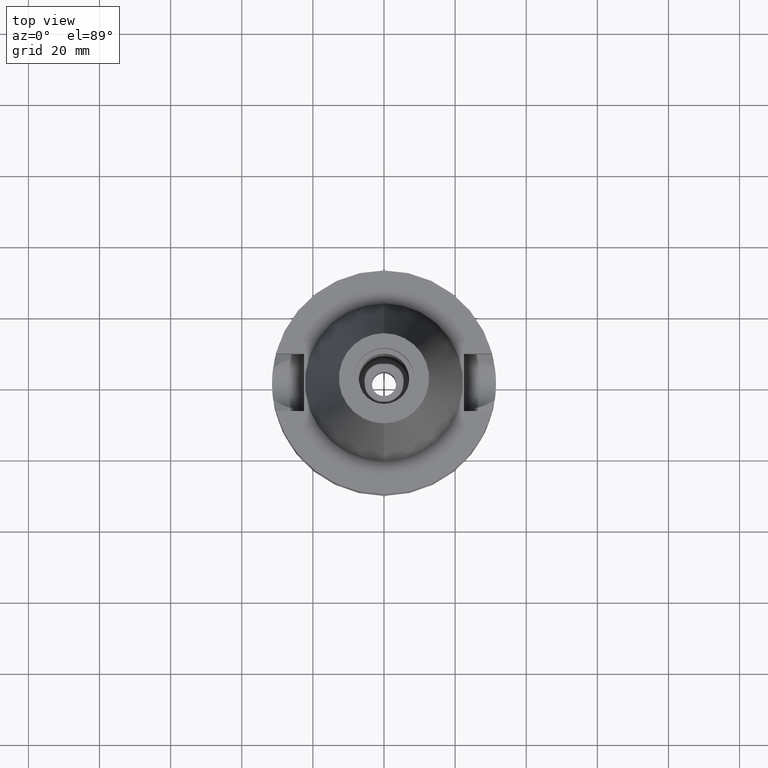
[diagram: clean part render]
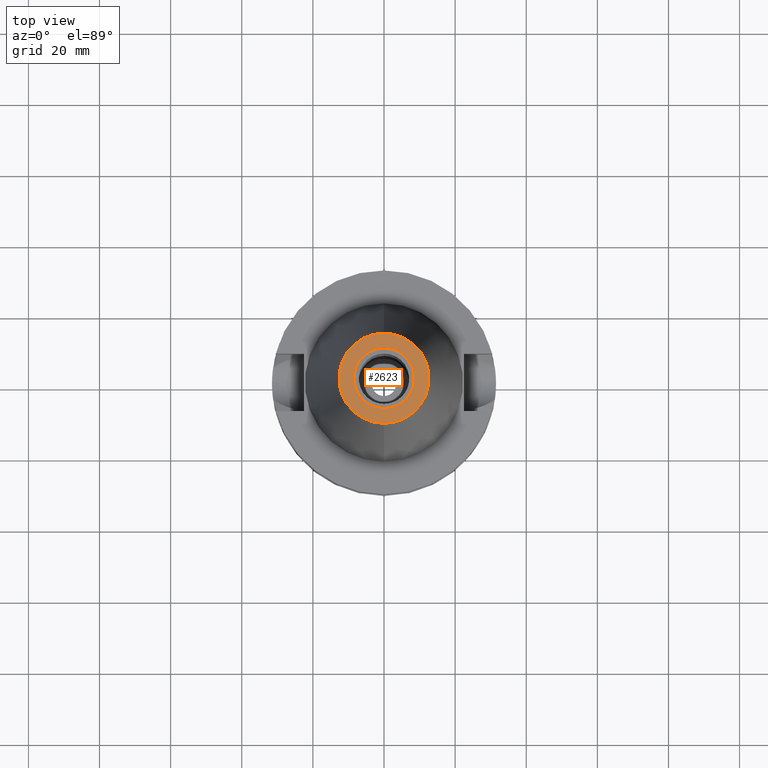
[diagram: same view with one face highlighted and labeled with its STEP entity id]
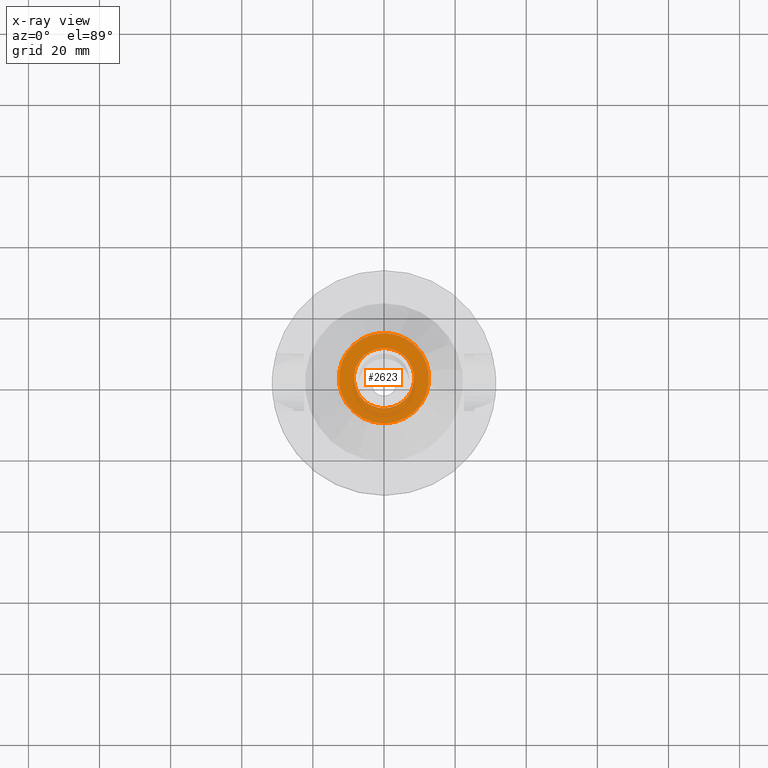
[diagram: x-ray of the same camera — body ghosted, the highlighted face saturated]
A machine part, top view. The second image highlights one B-rep face of the part: STEP entity #2623.
The next image is the same camera in x-ray: the body ghosted, the highlighted face saturated — about 0% of this face is hidden behind the body in this view.
In plain terms, the highlighted planar face has unit normal (0, 0, -1).
Its self-contained STEP definition (entity closure, byte-faithful):
#17=CARTESIAN_POINT('',(0.E0,1.625106302469E-14,6.54E1));
#18=DIRECTION('',(0.E0,0.E0,-1.E0));
#19=DIRECTION('',(0.E0,-1.E0,0.E0));
#20=AXIS2_PLACEMENT_3D('',#17,#18,#19);
#26=CARTESIAN_POINT('',(0.E0,1.625106302469E-14,6.54E1));
#27=DIRECTION('',(0.E0,0.E0,-1.E0));
#28=DIRECTION('',(0.E0,1.E0,0.E0));
#29=AXIS2_PLACEMENT_3D('',#26,#27,#28);
#34=CARTESIAN_POINT('',(0.E0,2.139090564071E-14,6.54E1));
#35=DIRECTION('',(0.E0,0.E0,1.E0));
#36=DIRECTION('',(0.E0,-1.E0,0.E0));
#37=AXIS2_PLACEMENT_3D('',#34,#35,#36);
#42=CARTESIAN_POINT('',(0.E0,2.139090564071E-14,6.54E1));
#43=DIRECTION('',(0.E0,0.E0,1.E0));
#44=DIRECTION('',(0.E0,1.E0,0.E0));
#45=AXIS2_PLACEMENT_3D('',#42,#43,#44);
#2283=CARTESIAN_POINT('',(0.E0,-1.268766899430E1,6.54E1));
#2284=CARTESIAN_POINT('',(0.E0,1.268766899430E1,6.54E1));
#2285=VERTEX_POINT('',#2283);
#2286=VERTEX_POINT('',#2284);
#2287=CARTESIAN_POINT('',(0.E0,-8.5E0,6.54E1));
#2288=CARTESIAN_POINT('',(0.E0,8.5E0,6.54E1));
#2289=VERTEX_POINT('',#2287);
#2290=VERTEX_POINT('',#2288);
#2606=CARTESIAN_POINT('',(0.E0,2.025565805790E-14,6.54E1));
#2607=DIRECTION('',(0.E0,0.E0,-1.E0));
#2608=DIRECTION('',(0.E0,-1.E0,0.E0));
#2609=AXIS2_PLACEMENT_3D('',#2606,#2607,#2608);
#2610=PLANE('',#2609);
#2612=ORIENTED_EDGE('',*,*,#2611,.T.);
#2614=ORIENTED_EDGE('',*,*,#2613,.T.);
#2615=EDGE_LOOP('',(#2612,#2614));
#2616=FACE_OUTER_BOUND('',#2615,.F.);
#2618=ORIENTED_EDGE('',*,*,#2617,.T.);
#2620=ORIENTED_EDGE('',*,*,#2619,.T.);
#2621=EDGE_LOOP('',(#2618,#2620));
#2622=FACE_BOUND('',#2621,.F.);
#21=CIRCLE('',#20,1.268766899430E1);
#30=CIRCLE('',#29,1.268766899430E1);
#38=CIRCLE('',#37,8.5E0);
#46=CIRCLE('',#45,8.5E0);
#2611=EDGE_CURVE('',#2285,#2286,#21,.T.);
#2613=EDGE_CURVE('',#2286,#2285,#30,.T.);
#2617=EDGE_CURVE('',#2289,#2290,#38,.T.);
#2619=EDGE_CURVE('',#2290,#2289,#46,.T.);
#2623=ADVANCED_FACE('',(#2616,#2622),#2610,.F.);